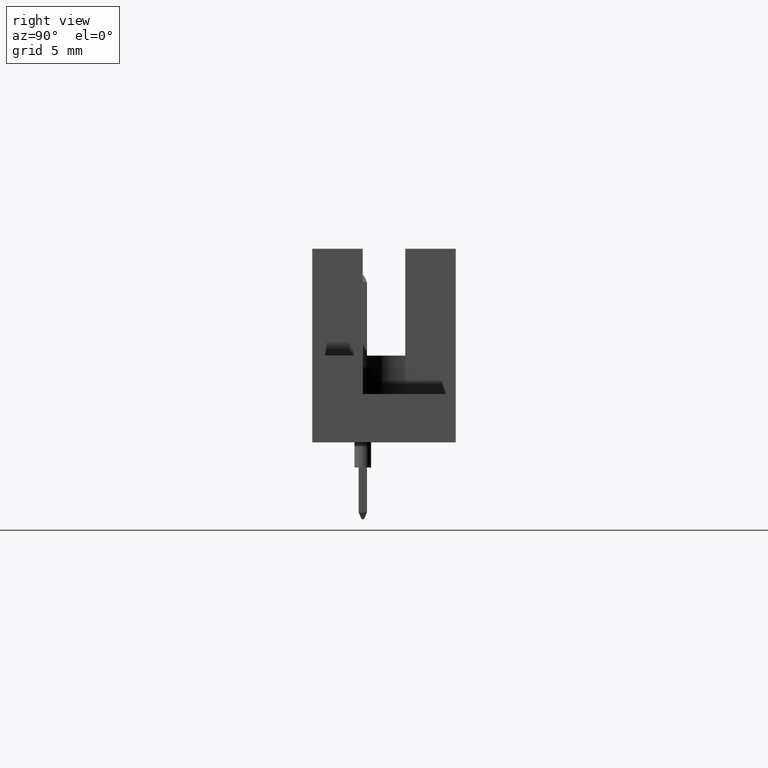
[diagram: clean part render]
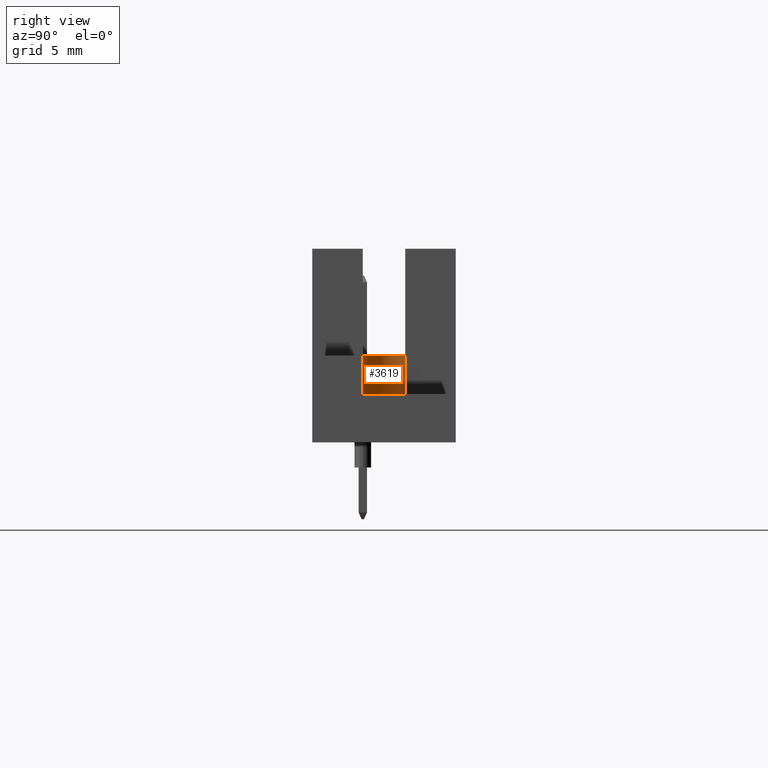
[diagram: same view with one face highlighted and labeled with its STEP entity id]
A machine part, right view. The second image highlights one B-rep face of the part: STEP entity #3619.
In plain terms, the highlighted cylindrical surface (partial cylindrical patch) has radius 2.8 mm, axis along (-0, -0, -1).
Its self-contained STEP definition (entity closure, byte-faithful):
#147 = AXIS2_PLACEMENT_3D ( 'NONE', #3182, #2457, #474 ) ;
#170 = EDGE_CURVE ( 'NONE', #823, #3414, #4672, .T. ) ;
#221 = CARTESIAN_POINT ( 'NONE',  ( 17.48233981823222294, 1.476974248434020032, 19.22686042877410628 ) ) ;
#242 = AXIS2_PLACEMENT_3D ( 'NONE', #3746, #3290, #3700 ) ;
#301 = ORIENTED_EDGE ( 'NONE', *, *, #1085, .F. ) ;
#474 = DIRECTION ( 'NONE',  ( 1.000000000000000000, 0.0000000000000000000, 0.0000000000000000000 ) ) ;
#475 = VECTOR ( 'NONE', #4223, 1000.000000000000000 ) ;
#641 = FACE_OUTER_BOUND ( 'NONE', #3152, .T. ) ;
#823 = VERTEX_POINT ( 'NONE', #4552 ) ;
#1037 = CYLINDRICAL_SURFACE ( 'NONE', #1110, 2.800000000000000266 ) ;
#1085 = EDGE_CURVE ( 'NONE', #823, #3890, #5115, .T. ) ;
#1110 = AXIS2_PLACEMENT_3D ( 'NONE', #221, #4181, #1378 ) ;
#1378 = DIRECTION ( 'NONE',  ( -1.000000000000000000, 0.0000000000000000000, 0.0000000000000000000 ) ) ;
#1965 = DIRECTION ( 'NONE',  ( -0.0000000000000000000, -0.0000000000000000000, -1.000000000000000000 ) ) ;
#2100 = VECTOR ( 'NONE', #1965, 1000.000000000000000 ) ;
#2457 = DIRECTION ( 'NONE',  ( 0.0000000000000000000, 0.0000000000000000000, 1.000000000000000000 ) ) ;
#2631 = CARTESIAN_POINT ( 'NONE',  ( 16.94000000000001194, -1.270000000000035323, 19.22686042877410628 ) ) ;
#2866 = EDGE_CURVE ( 'NONE', #3414, #5069, #3024, .T. ) ;
#2943 = CARTESIAN_POINT ( 'NONE',  ( 14.68999999999999773, 1.270000000000026219, 2.899999999999999911 ) ) ;
#3024 = LINE ( 'NONE', #2631, #475 ) ;
#3152 = EDGE_LOOP ( 'NONE', ( #4497, #4671, #5015, #301 ) ) ;
#3182 = CARTESIAN_POINT ( 'NONE',  ( 17.48233981823222294, 1.476974248434020032, 5.200000000000000178 ) ) ;
#3290 = DIRECTION ( 'NONE',  ( 0.0000000000000000000, 0.0000000000000000000, -1.000000000000000000 ) ) ;
#3414 = VERTEX_POINT ( 'NONE', #3512 ) ;
#3512 = CARTESIAN_POINT ( 'NONE',  ( 16.94000000000001194, -1.270000000000035323, 5.199999999999998401 ) ) ;
#3619 = ADVANCED_FACE ( 'NONE', ( #641 ), #1037, .F. ) ;
#3700 = DIRECTION ( 'NONE',  ( -1.000000000000000000, 0.0000000000000000000, 0.0000000000000000000 ) ) ;
#3746 = CARTESIAN_POINT ( 'NONE',  ( 17.48233981823222294, 1.476974248434020032, 2.899999999999999911 ) ) ;
#3890 = VERTEX_POINT ( 'NONE', #2943 ) ;
#3936 = CARTESIAN_POINT ( 'NONE',  ( 14.68999999999999773, 1.270000000000026219, 19.22686042877410628 ) ) ;
#4181 = DIRECTION ( 'NONE',  ( -0.0000000000000000000, -0.0000000000000000000, -1.000000000000000000 ) ) ;
#4223 = DIRECTION ( 'NONE',  ( -0.0000000000000000000, -0.0000000000000000000, -1.000000000000000000 ) ) ;
#4262 = CIRCLE ( 'NONE', #242, 2.800000000000000266 ) ;
#4390 = EDGE_CURVE ( 'NONE', #5069, #3890, #4262, .T. ) ;
#4497 = ORIENTED_EDGE ( 'NONE', *, *, #170, .T. ) ;
#4552 = CARTESIAN_POINT ( 'NONE',  ( 14.68999999999999773, 1.270000000000026219, 5.200000000000000178 ) ) ;
#4671 = ORIENTED_EDGE ( 'NONE', *, *, #2866, .T. ) ;
#4672 = CIRCLE ( 'NONE', #147, 2.800000000000000266 ) ;
#5015 = ORIENTED_EDGE ( 'NONE', *, *, #4390, .T. ) ;
#5064 = CARTESIAN_POINT ( 'NONE',  ( 16.94000000000001194, -1.270000000000035323, 2.899999999999999911 ) ) ;
#5069 = VERTEX_POINT ( 'NONE', #5064 ) ;
#5115 = LINE ( 'NONE', #3936, #2100 ) ;